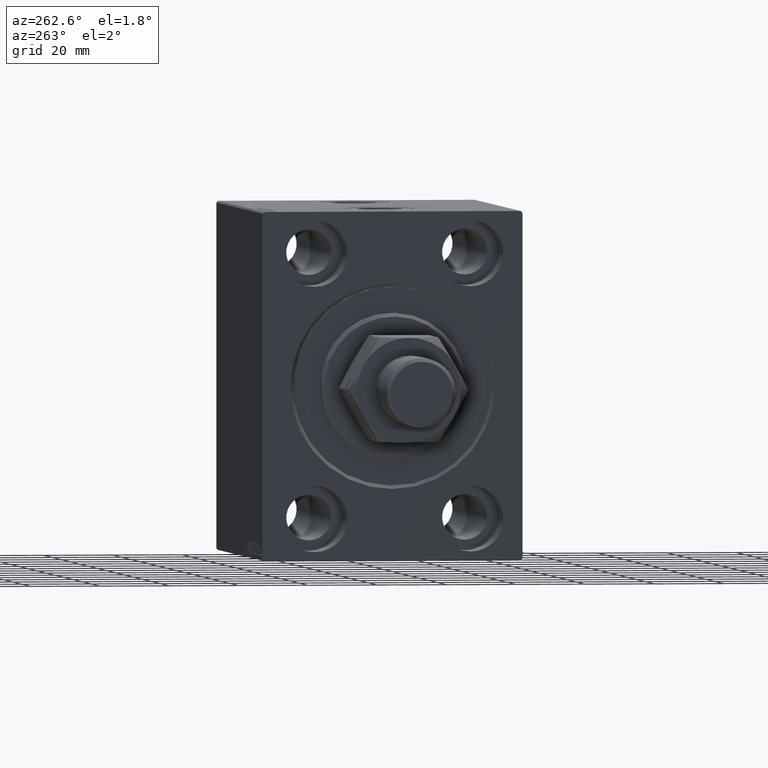
[diagram: clean part render]
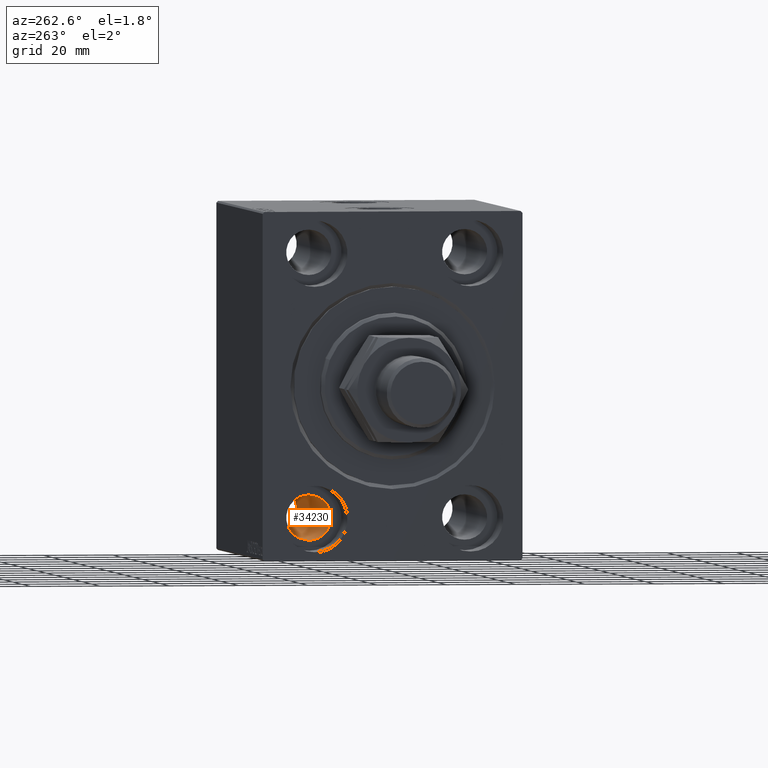
[diagram: same view with one face highlighted and labeled with its STEP entity id]
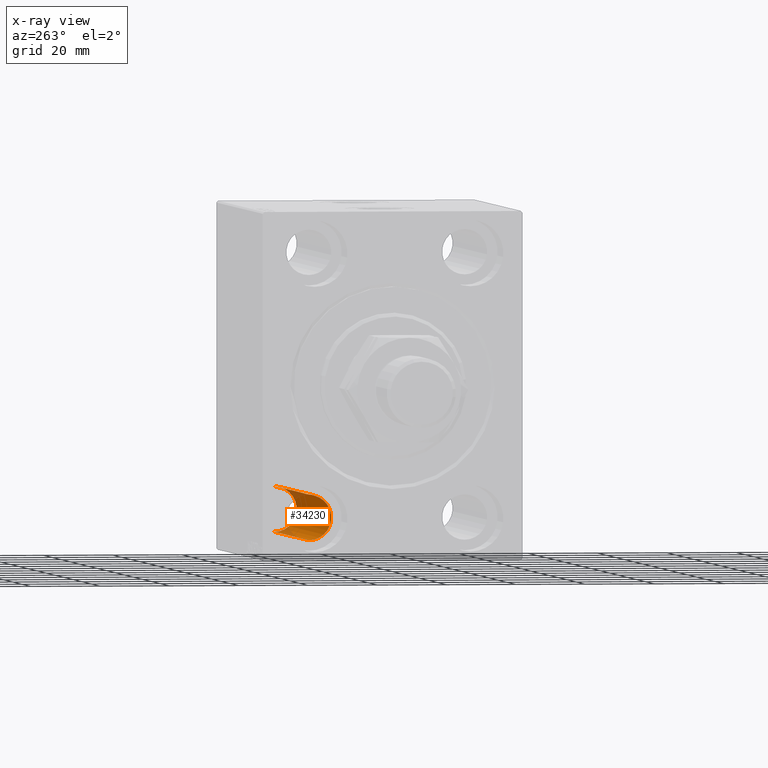
[diagram: x-ray of the same camera — body ghosted, the highlighted face saturated]
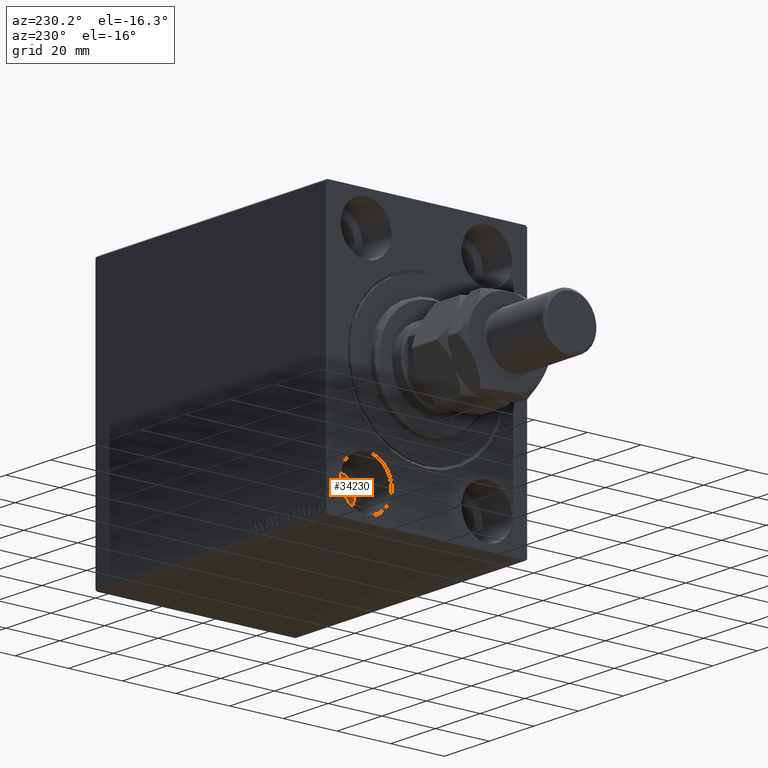
[diagram: same view with one face highlighted and labeled with its STEP entity id]
A machine part, auxiliary view. The second image highlights one B-rep face of the part: STEP entity #34230.
The next image is the same camera in x-ray: the body ghosted, the highlighted face saturated — about 11% of this face is hidden behind the body in this view.
A second angle (auxiliary view) of the same face is appended — the face is thin or edge-on in the first view.
In plain terms, the highlighted cylindrical surface (edge-blend (fillet) strip) has radius 6.5 mm, axis along (-1, -0, -0).
Its self-contained STEP definition (entity closure, byte-faithful):
#553 = ORIENTED_EDGE ( 'NONE', *, *, #38692, .F. ) ;
#659 = CIRCLE ( 'NONE', #44207, 6.499999999999999112 ) ;
#2192 = DIRECTION ( 'NONE',  ( 0.000000000000000000, 0.000000000000000000, 1.000000000000000000 ) ) ;
#3586 = DIRECTION ( 'NONE',  ( -1.000000000000000000, -0.000000000000000000, -0.000000000000000000 ) ) ;
#4653 = EDGE_CURVE ( 'NONE', #27719, #44884, #659, .T. ) ;
#4663 = ORIENTED_EDGE ( 'NONE', *, *, #7102, .F. ) ;
#5669 = CARTESIAN_POINT ( 'NONE',  ( 103.0000000000000000, 22.49999999999999645, -37.99999999999999289 ) ) ;
#5955 = AXIS2_PLACEMENT_3D ( 'NONE', #30043, #26821, #40923 ) ;
#6010 = CARTESIAN_POINT ( 'NONE',  ( 90.00000000000000000, 22.49999999999999645, -31.49999999999999289 ) ) ;
#6528 = AXIS2_PLACEMENT_3D ( 'NONE', #5669, #19746, #2192 ) ;
#7102 = EDGE_CURVE ( 'NONE', #31137, #44884, #10518, .T. ) ;
#7865 = DIRECTION ( 'NONE',  ( -1.000000000000000000, -0.000000000000000000, -0.000000000000000000 ) ) ;
#8412 = EDGE_CURVE ( 'NONE', #42515, #27719, #17816, .T. ) ;
#9397 = ORIENTED_EDGE ( 'NONE', *, *, #4653, .T. ) ;
#10518 = LINE ( 'NONE', #24610, #42780 ) ;
#12597 = CYLINDRICAL_SURFACE ( 'NONE', #6528, 6.499999999999999112 ) ;
#15984 = DIRECTION ( 'NONE',  ( 0.000000000000000000, 0.000000000000000000, 1.000000000000000000 ) ) ;
#16502 = CARTESIAN_POINT ( 'NONE',  ( 90.00000000000000000, 22.49999999999999645, -44.49999999999999289 ) ) ;
#16548 = ORIENTED_EDGE ( 'NONE', *, *, #8412, .T. ) ;
#17816 = LINE ( 'NONE', #29119, #43543 ) ;
#19746 = DIRECTION ( 'NONE',  ( -1.000000000000000000, -0.000000000000000000, -0.000000000000000000 ) ) ;
#22930 = CARTESIAN_POINT ( 'NONE',  ( 12.99999999999999822, 22.49999999999999645, -37.99999999999999289 ) ) ;
#24610 = CARTESIAN_POINT ( 'NONE',  ( 103.0000000000000000, 22.49999999999999645, -31.49999999999999289 ) ) ;
#26821 = DIRECTION ( 'NONE',  ( -1.000000000000000000, -0.000000000000000000, -0.000000000000000000 ) ) ;
#27719 = VERTEX_POINT ( 'NONE', #34657 ) ;
#29119 = CARTESIAN_POINT ( 'NONE',  ( 103.0000000000000000, 22.49999999999999645, -44.49999999999999289 ) ) ;
#30043 = CARTESIAN_POINT ( 'NONE',  ( 90.00000000000000000, 22.49999999999999645, -37.99999999999999289 ) ) ;
#31137 = VERTEX_POINT ( 'NONE', #6010 ) ;
#31733 = CARTESIAN_POINT ( 'NONE',  ( 12.99999999999999822, 22.49999999999999645, -31.49999999999999289 ) ) ;
#33984 = CIRCLE ( 'NONE', #5955, 6.499999999999999112 ) ;
#34160 = EDGE_LOOP ( 'NONE', ( #553, #16548, #9397, #4663 ) ) ;
#34230 = ADVANCED_FACE ( 'NONE', ( #37319 ), #12597, .F. ) ;
#34657 = CARTESIAN_POINT ( 'NONE',  ( 12.99999999999999822, 22.49999999999999645, -44.49999999999999289 ) ) ;
#37029 = DIRECTION ( 'NONE',  ( -1.000000000000000000, 0.000000000000000000, 0.000000000000000000 ) ) ;
#37319 = FACE_OUTER_BOUND ( 'NONE', #34160, .T. ) ;
#38692 = EDGE_CURVE ( 'NONE', #42515, #31137, #33984, .T. ) ;
#40923 = DIRECTION ( 'NONE',  ( 0.000000000000000000, 0.000000000000000000, -1.000000000000000000 ) ) ;
#42515 = VERTEX_POINT ( 'NONE', #16502 ) ;
#42780 = VECTOR ( 'NONE', #3586, 1000.000000000000000 ) ;
#43543 = VECTOR ( 'NONE', #7865, 1000.000000000000000 ) ;
#44207 = AXIS2_PLACEMENT_3D ( 'NONE', #22930, #37029, #15984 ) ;
#44884 = VERTEX_POINT ( 'NONE', #31733 ) ;